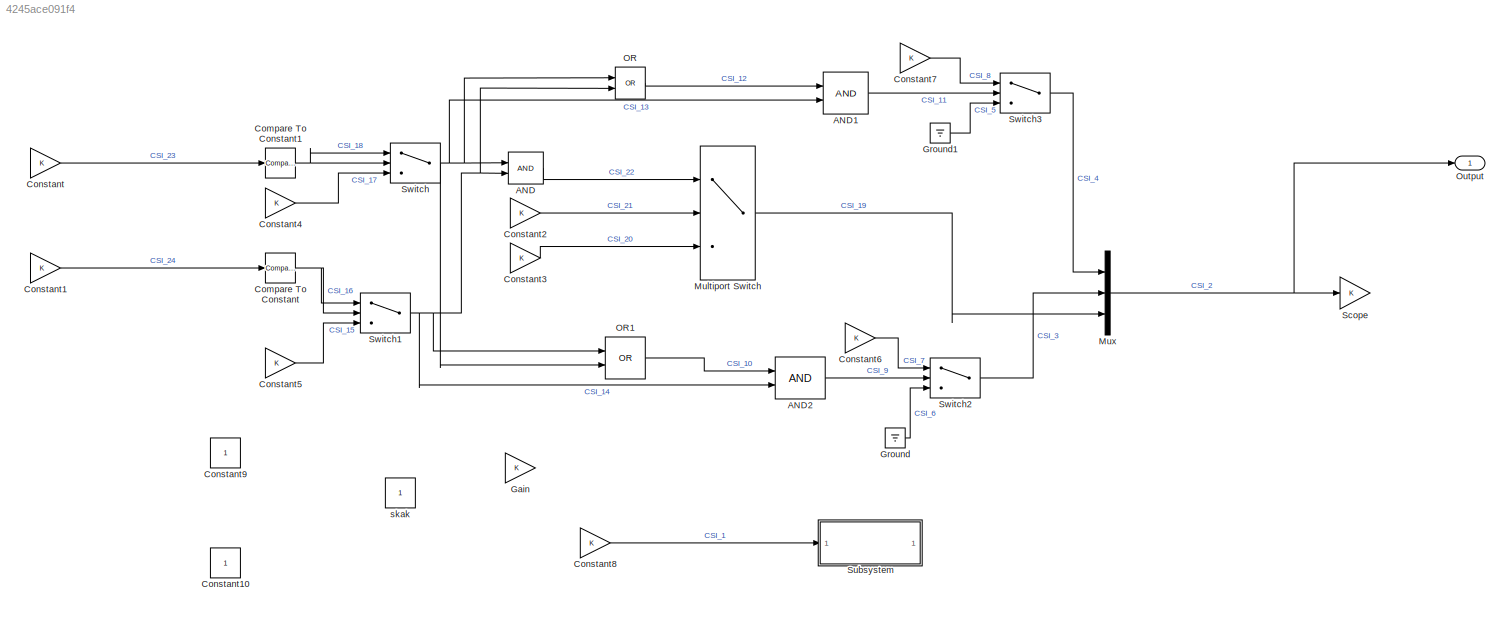
MODEL slx_4245ace091f4
KIND model
CONFIG AbsTol = auto
CONFIG EnableMultiTasking = off
CONFIG FixedStep = auto
CONFIG MaxStep = auto
CONFIG MinStep = auto
CONFIG RelTol = 1e-3
CONFIG SampleTimeConstraint = Unconstrained
CONFIG SolverName = FixedStepDiscrete
CONFIG StartTime = 0.0
CONFIG StopTime = 10.0
BLOCK [Logic] AND
  AllPortsSameDT = off
  IconShape = distinctive
  OutDataTypeStr = boolean
BLOCK [Logic] AND1
  AllPortsSameDT = off
  IconShape = distinctive
  OutDataTypeStr = boolean
BLOCK [Logic] AND2
  AllPortsSameDT = off
  IconShape = distinctive
  OutDataTypeStr = boolean
BLOCK [Reference] Compare To Constant  REF=simulink/Logic and Bit
Operations/Compare
To Constant
  SourceBlock = simulink/Logic and Bit\nOperations/Compare\nTo Constant
  SourceType = Compare To Constant
BLOCK [Reference] Compare To Constant1  REF=simulink/Logic and Bit
Operations/Compare
To Constant
  SourceBlock = simulink/Logic and Bit\nOperations/Compare\nTo Constant
  SourceType = Compare To Constant
BLOCK [Gain] Constant
BLOCK [Gain] Constant1
BLOCK [Constant] Constant10
BLOCK [Gain] Constant2
BLOCK [Gain] Constant3
BLOCK [Gain] Constant4
BLOCK [Gain] Constant5
BLOCK [Gain] Constant6
BLOCK [Gain] Constant7
BLOCK [Gain] Constant8
BLOCK [Constant] Constant9
BLOCK [Gain] Gain
BLOCK [Ground] Ground
BLOCK [Ground] Ground1
BLOCK [MultiPortSwitch] Multiport Switch
  DataPortOrder = Zero-based contiguous
  InputSameDT = off
  Inputs = 2
  SaturateOnIntegerOverflow = off
  zeroidx = on
BLOCK [Mux] Mux
  DisplayOption = bar
  Inputs = 3
BLOCK [Logic] OR
  AllPortsSameDT = off
  IconShape = distinctive
  Operator = OR
  OutDataTypeStr = boolean
BLOCK [Logic] OR1
  AllPortsSameDT = off
  IconShape = distinctive
  Operator = OR
  OutDataTypeStr = boolean
BLOCK [Outport] Output
BLOCK [Gain] Scope
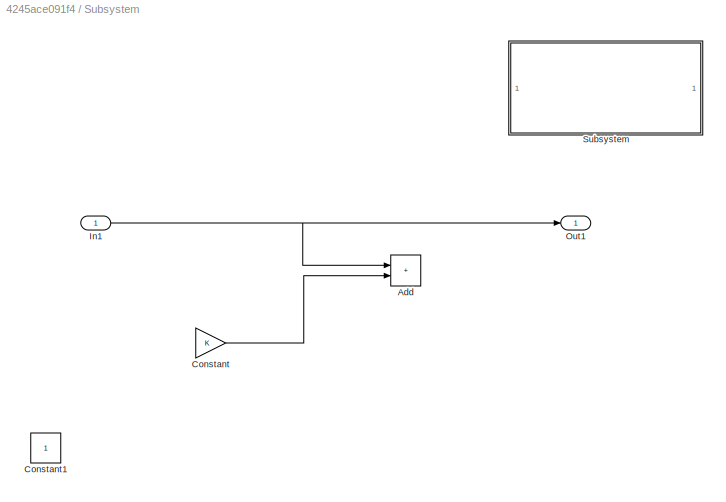
BLOCK [SubSystem] Subsystem
BLOCK [Sum] Subsystem/Add
  IconShape = rectangular
BLOCK [Gain] Subsystem/Constant
BLOCK [Constant] Subsystem/Constant1
BLOCK [Inport] Subsystem/In1
BLOCK [Outport] Subsystem/Out1
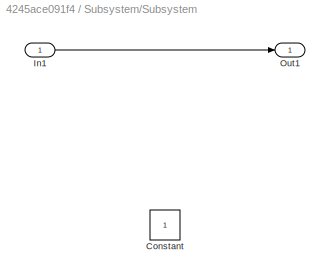
BLOCK [SubSystem] Subsystem/Subsystem
BLOCK [Constant] Subsystem/Subsystem/Constant
BLOCK [Inport] Subsystem/Subsystem/In1
BLOCK [Outport] Subsystem/Subsystem/Out1
BLOCK [Switch] Switch
  Criteria = u2 > Threshold
  InputSameDT = off
  SaturateOnIntegerOverflow = off
BLOCK [Switch] Switch1
  Criteria = u2 > Threshold
  InputSameDT = off
  SaturateOnIntegerOverflow = off
BLOCK [Switch] Switch2
  Criteria = u2 > Threshold
  InputSameDT = off
  SaturateOnIntegerOverflow = off
BLOCK [Switch] Switch3
  Criteria = u2 > Threshold
  InputSameDT = off
  SaturateOnIntegerOverflow = off
BLOCK [Constant] skak
LINE AND1:1 -> Switch3:2
LINE AND2:1 -> Switch2:2
LINE AND:1 -> Multiport Switch:1
NET Compare To Constant1:1 -> Switch:1, Switch:2
NET Compare To Constant:1 -> Switch1:1, Switch1:2
LINE Constant1:1 -> Compare To Constant:1
LINE Constant2:1 -> Multiport Switch:2
LINE Constant3:1 -> Multiport Switch:3
LINE Constant4:1 -> Switch:3
LINE Constant5:1 -> Switch1:3
LINE Constant6:1 -> Switch2:1
LINE Constant7:1 -> Switch3:1
LINE Constant8:1 -> Subsystem:1
LINE Constant:1 -> Compare To Constant1:1
LINE Ground1:1 -> Switch3:3
LINE Ground:1 -> Switch2:3
LINE Multiport Switch:1 -> Mux:3
NET Mux:1 -> Output:1, Scope:1
LINE OR1:1 -> AND2:1
LINE OR:1 -> AND1:1
LINE Subsystem/Constant:1 -> Subsystem/Add:2
NET Subsystem/In1:1 -> Subsystem/Add:1, Subsystem/Out1:1
LINE Subsystem/Subsystem/In1:1 -> Subsystem/Subsystem/Out1:1
NET Switch1:1 -> AND2:2, AND:2, OR1:1, OR:2
LINE Switch2:1 -> Mux:2
LINE Switch3:1 -> Mux:1
NET Switch:1 -> AND1:2, AND:1, OR1:2, OR:1
note: NET lines group one-source signal fan-out (src -> all destinations, sorted); 1:1 wires keep LINE
